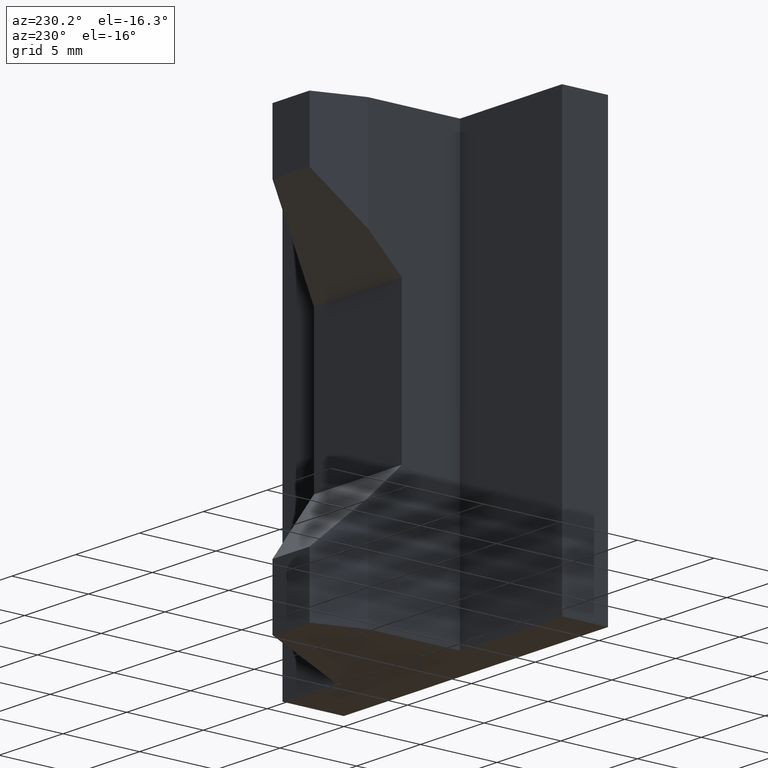
[diagram: clean part render]
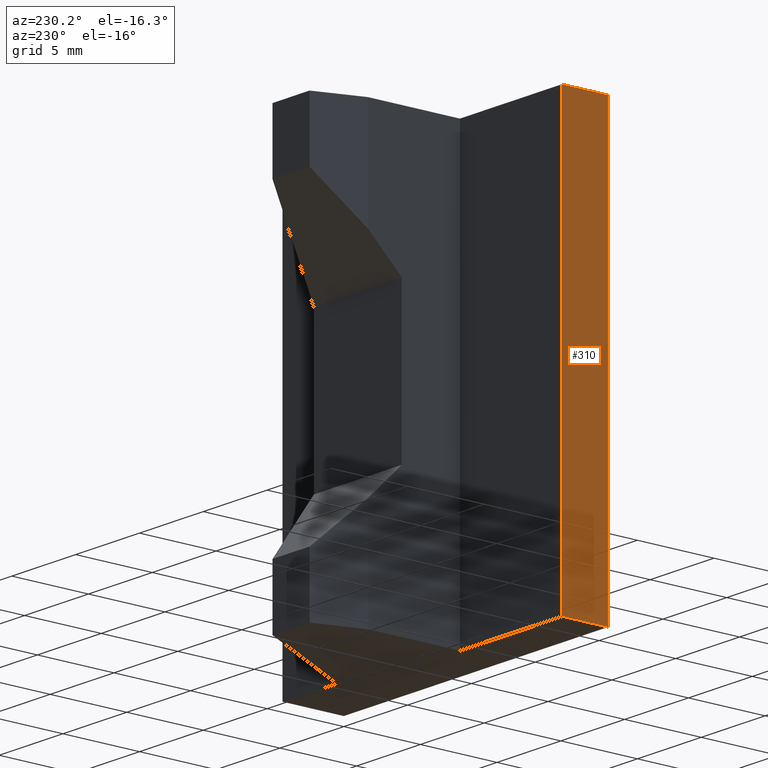
[diagram: same view with one face highlighted and labeled with its STEP entity id]
A machine part, auxiliary view. The second image highlights one B-rep face of the part: STEP entity #310.
In plain terms, the highlighted planar face has unit normal (-1, 0, 0).
Its self-contained STEP definition (entity closure, byte-faithful):
#24=FACE_OUTER_BOUND('',#40,.T.);
#40=EDGE_LOOP('',(#248,#249,#250,#251));
#74=LINE('',#491,#116);
#78=LINE('',#499,#120);
#79=LINE('',#500,#121);
#80=LINE('',#501,#122);
#116=VECTOR('',#403,10.);
#120=VECTOR('',#409,10.);
#121=VECTOR('',#410,10.);
#122=VECTOR('',#411,10.);
#151=VERTEX_POINT('',#488);
#152=VERTEX_POINT('',#490);
#154=VERTEX_POINT('',#497);
#155=VERTEX_POINT('',#498);
#186=EDGE_CURVE('',#152,#151,#74,.T.);
#190=EDGE_CURVE('',#154,#155,#78,.T.);
#191=EDGE_CURVE('',#155,#152,#79,.T.);
#192=EDGE_CURVE('',#154,#151,#80,.T.);
#248=ORIENTED_EDGE('',*,*,#190,.T.);
#249=ORIENTED_EDGE('',*,*,#191,.T.);
#250=ORIENTED_EDGE('',*,*,#186,.T.);
#251=ORIENTED_EDGE('',*,*,#192,.F.);
#294=PLANE('',#349);
#310=ADVANCED_FACE('',(#24),#294,.T.);
#349=AXIS2_PLACEMENT_3D('',#496,#407,#408);
#403=DIRECTION('',(0.,-1.,0.));
#407=DIRECTION('center_axis',(-1.,0.,0.));
#408=DIRECTION('ref_axis',(0.,0.,1.));
#409=DIRECTION('',(0.,1.,0.));
#410=DIRECTION('',(0.,0.,-1.));
#411=DIRECTION('',(0.,0.,-1.));
#488=CARTESIAN_POINT('',(-20.7,-2.21697629017867E-15,-13.9));
#490=CARTESIAN_POINT('',(-20.7,3.,-13.9));
#491=CARTESIAN_POINT('',(-20.7,-2.21697629017867E-15,-13.9));
#496=CARTESIAN_POINT('Origin',(-20.7,-2.21697629017867E-15,0.));
#497=CARTESIAN_POINT('',(-20.7,-2.21697629017867E-15,13.9));
#498=CARTESIAN_POINT('',(-20.7,3.,13.9));
#499=CARTESIAN_POINT('',(-20.7,-2.21697629017867E-15,13.9));
#500=CARTESIAN_POINT('',(-20.7,3.,0.));
#501=CARTESIAN_POINT('',(-20.7,-2.21697629017867E-15,0.));